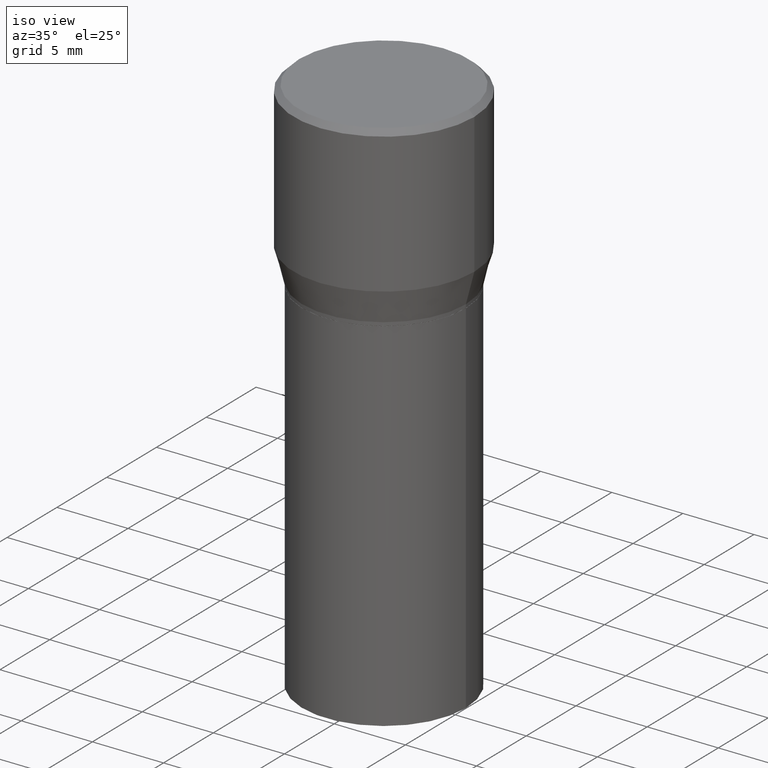
[diagram: clean part render]
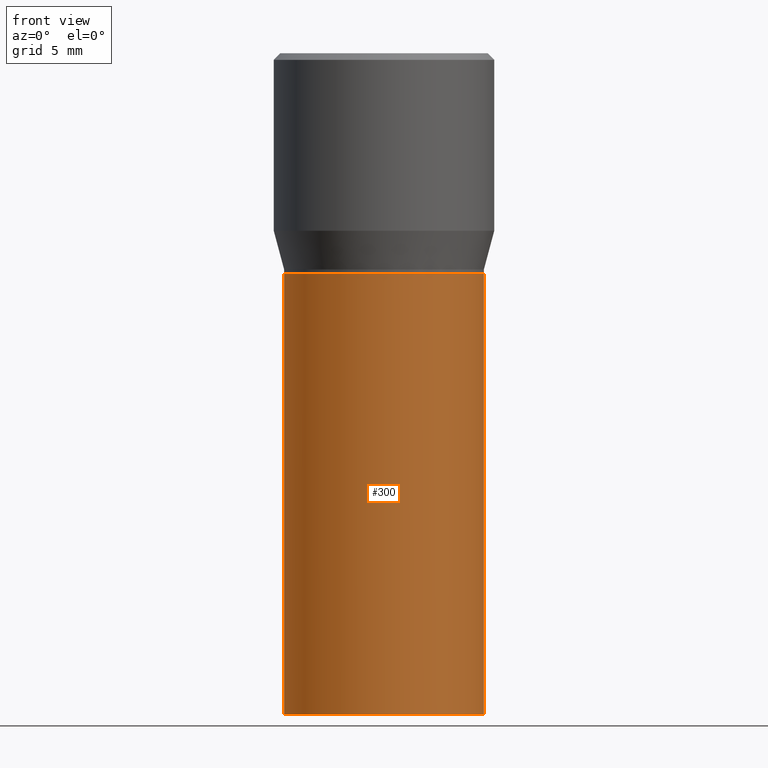
[diagram: tour spotlight — one face highlighted and labeled with its STEP entity id]
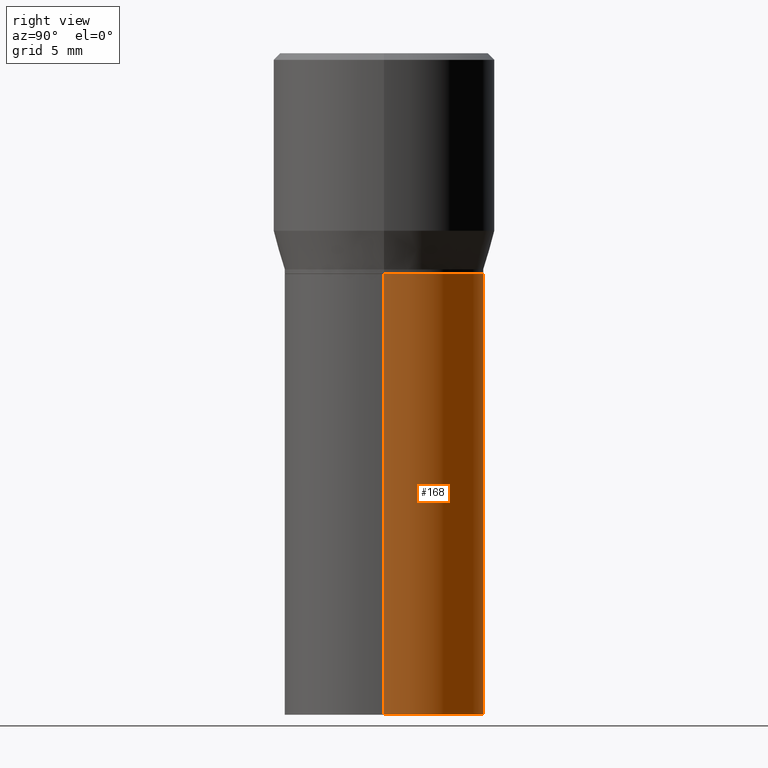
[diagram: tour spotlight — one face highlighted and labeled with its STEP entity id]
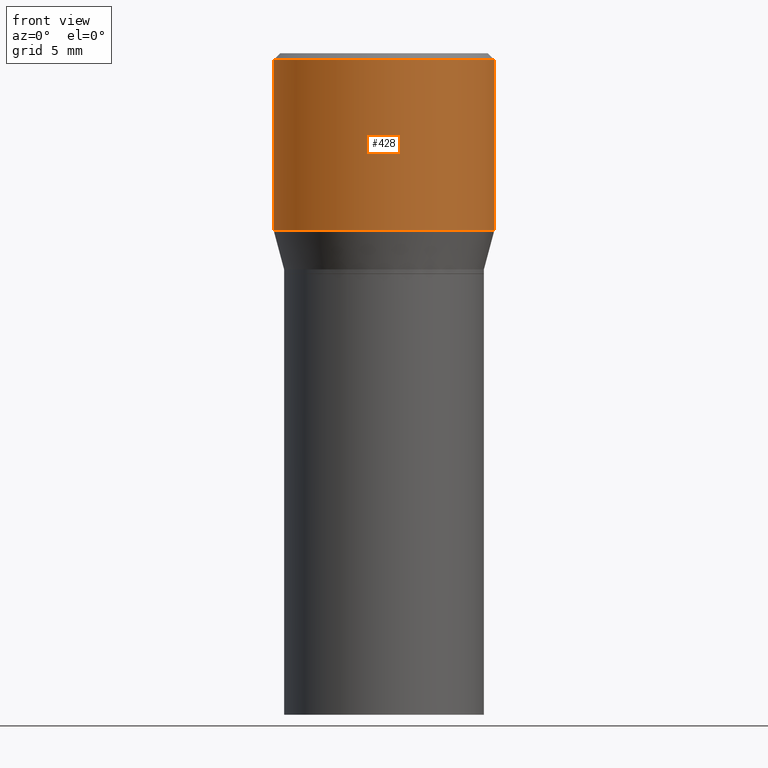
[diagram: tour spotlight — one face highlighted and labeled with its STEP entity id]
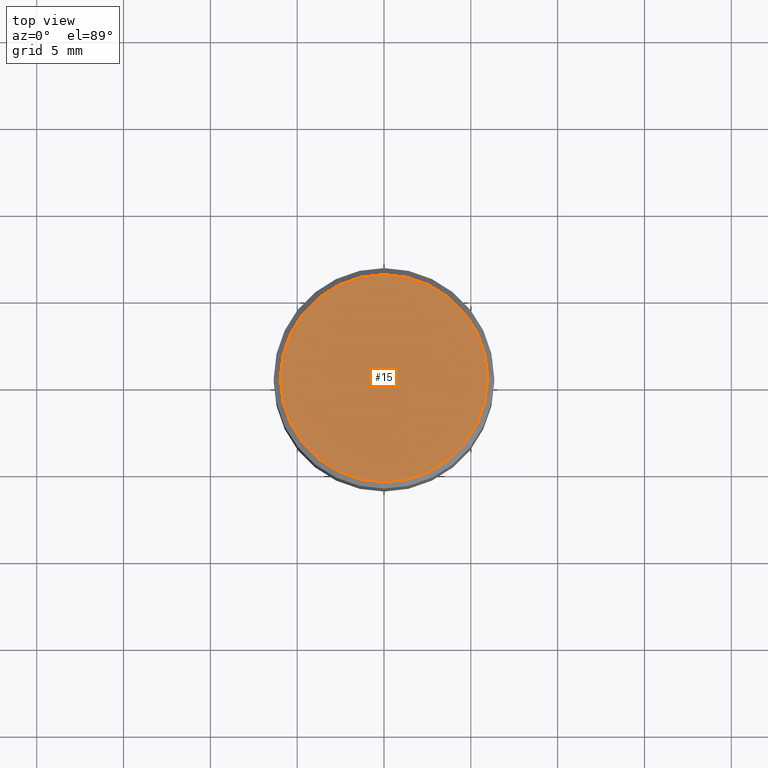
[diagram: tour spotlight — one face highlighted and labeled with its STEP entity id]
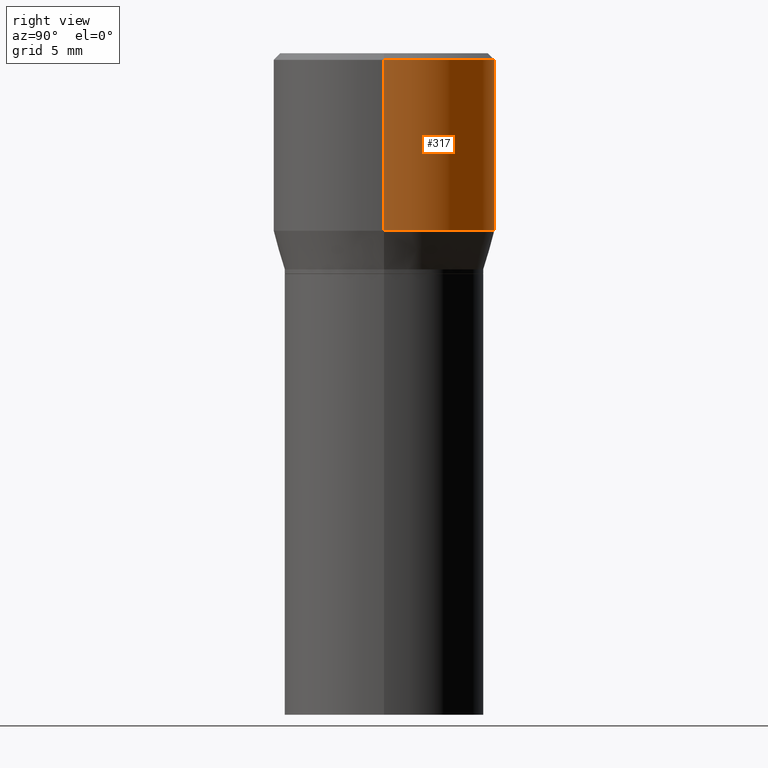
[diagram: tour spotlight — one face highlighted and labeled with its STEP entity id]
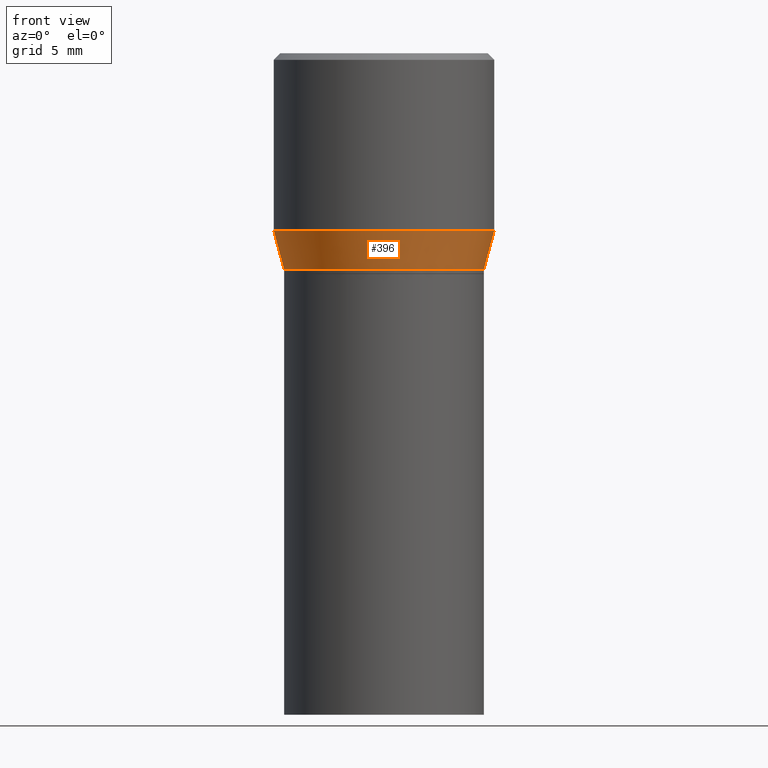
[diagram: tour spotlight — one face highlighted and labeled with its STEP entity id]
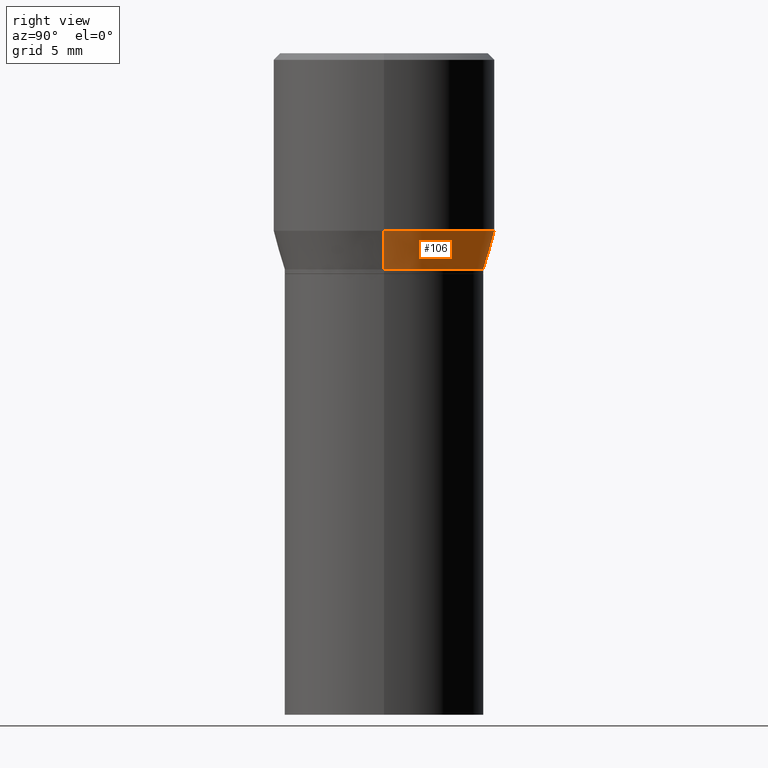
[diagram: tour spotlight — one face highlighted and labeled with its STEP entity id]
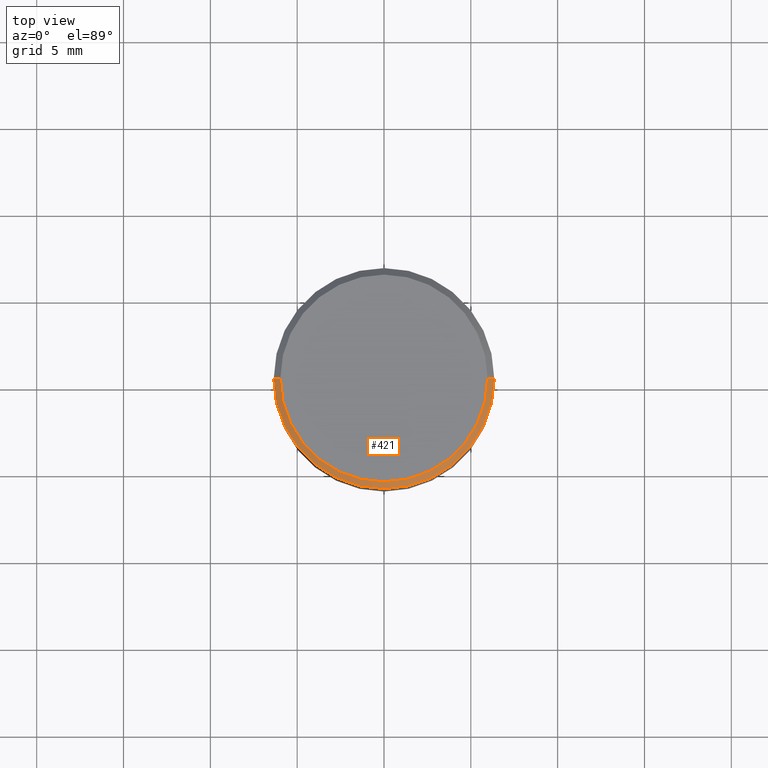
[diagram: tour spotlight — one face highlighted and labeled with its STEP entity id]
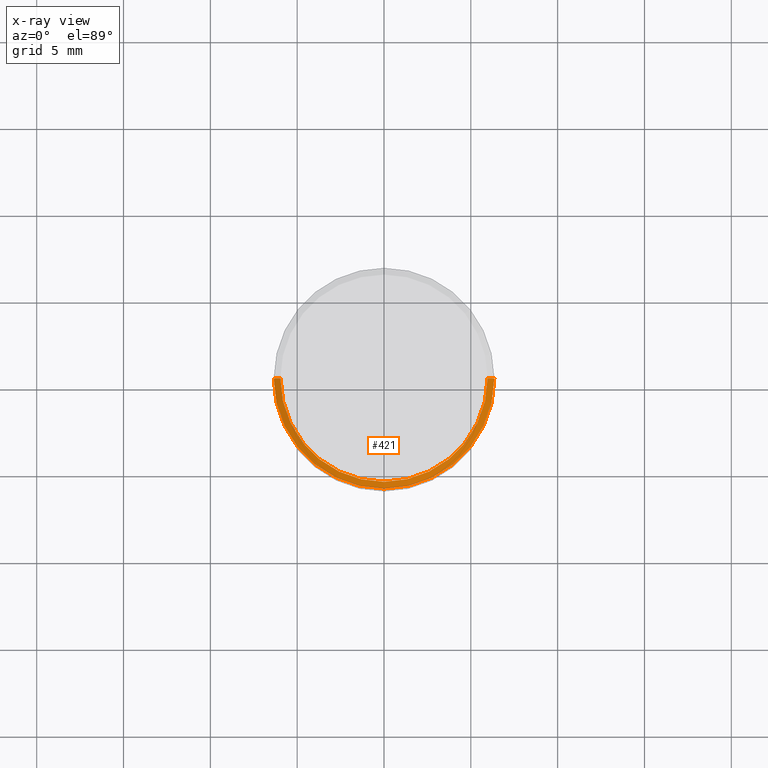
[diagram: x-ray of the same camera — body ghosted, this tour face saturated]
A machine part: a face-by-face anatomy tour. The part has 16 B-rep faces; the first image is the clean iso view, then the 8 largest visible faces are spotlighted one at a time (largest first), each with its STEP entity span.

Face 1 — front view, entity #300. In plain terms, the highlighted cylindrical surface (partial cylindrical patch) has radius 5.7544 mm, axis along (-0, 0, 1).
Definition (entity closure, byte-faithful):
#9 = LINE ( 'NONE', #401, #205 ) ;
#18 = LINE ( 'NONE', #126, #339 ) ;
#24 = ORIENTED_EDGE ( 'NONE', *, *, #342, .T. ) ;
#42 = CARTESIAN_POINT ( 'NONE',  ( 0.2265500000000000014, -6.819212202894542298E-15, -1.500000000000000222 ) ) ;
#52 = DIRECTION ( 'NONE',  ( 1.000000000000000000, -6.982962677686266711E-15, 4.876176775795935793E-29 ) ) ;
#55 = VERTEX_POINT ( 'NONE', #370 ) ;
#56 = AXIS2_PLACEMENT_3D ( 'NONE', #166, #274, #94 ) ;
#65 = ORIENTED_EDGE ( 'NONE', *, *, #78, .F. ) ;
#74 = VERTEX_POINT ( 'NONE', #196 ) ;
#78 = EDGE_CURVE ( 'NONE', #74, #379, #283, .T. ) ;
#83 = DIRECTION ( 'NONE',  ( -2.445468806185136877E-29, 3.491481338843145188E-15, 1.000000000000000000 ) ) ;
#91 = DIRECTION ( 'NONE',  ( 1.000000000000000000, -6.982962677686267499E-15, 0.000000000000000000 ) ) ;
#94 = DIRECTION ( 'NONE',  ( 1.000000000000000000, -6.982962677686266711E-15, 0.000000000000000000 ) ) ;
#113 = EDGE_CURVE ( 'NONE', #55, #291, #434, .T. ) ;
#121 = CARTESIAN_POINT ( 'NONE',  ( 3.668203209277704895E-29, -5.237222008264718177E-15, -1.500000000000000222 ) ) ;
#126 = CARTESIAN_POINT ( 'NONE',  ( -0.2265500000000000014, 1.609734567864506981E-15, -1.114384744697248863E-29 ) ) ;
#152 = FACE_OUTER_BOUND ( 'NONE', #307, .T. ) ;
#162 = CARTESIAN_POINT ( 'NONE',  ( 0.000000000000000000, 0.000000000000000000, 0.000000000000000000 ) ) ;
#166 = CARTESIAN_POINT ( 'NONE',  ( 1.222734403092568719E-29, -1.745740669421573186E-15, -0.5000000000000001110 ) ) ;
#180 = EDGE_CURVE ( 'NONE', #55, #74, #18, .T. ) ;
#196 = CARTESIAN_POINT ( 'NONE',  ( -0.2265500000000000014, -1.881746770978639193E-15, -0.5000000000000001110 ) ) ;
#205 = VECTOR ( 'NONE', #83, 39.37007874015748143 ) ;
#217 = ORIENTED_EDGE ( 'NONE', *, *, #113, .T. ) ;
#228 = AXIS2_PLACEMENT_3D ( 'NONE', #121, #308, #91 ) ;
#274 = DIRECTION ( 'NONE',  ( -2.445468806185136597E-29, 3.491481338843145583E-15, 1.000000000000000000 ) ) ;
#275 = CYLINDRICAL_SURFACE ( 'NONE', #369, 0.2265500000000000014 ) ;
#283 = CIRCLE ( 'NONE', #56, 0.2265500000000000014 ) ;
#291 = VERTEX_POINT ( 'NONE', #42 ) ;
#300 = ADVANCED_FACE ( 'NONE', ( #152 ), #275, .T. ) ;
#302 = DIRECTION ( 'NONE',  ( -2.445468806185136597E-29, 3.491481338843145583E-15, 1.000000000000000000 ) ) ;
#307 = EDGE_LOOP ( 'NONE', ( #405, #217, #24, #65 ) ) ;
#308 = DIRECTION ( 'NONE',  ( -2.445468806185136597E-29, 3.491481338843145583E-15, 1.000000000000000000 ) ) ;
#339 = VECTOR ( 'NONE', #415, 39.37007874015748143 ) ;
#342 = EDGE_CURVE ( 'NONE', #291, #379, #9, .T. ) ;
#369 = AXIS2_PLACEMENT_3D ( 'NONE', #162, #302, #52 ) ;
#370 = CARTESIAN_POINT ( 'NONE',  ( -0.2265500000000000014, -1.881746770978639193E-15, -1.500000000000000222 ) ) ;
#379 = VERTEX_POINT ( 'NONE', #426 ) ;
#401 = CARTESIAN_POINT ( 'NONE',  ( 0.2265500000000000014, -1.581990194629823726E-15, 1.104697848556569281E-29 ) ) ;
#405 = ORIENTED_EDGE ( 'NONE', *, *, #180, .F. ) ;
#415 = DIRECTION ( 'NONE',  ( -2.445468806185136877E-29, 3.491481338843145188E-15, 1.000000000000000000 ) ) ;
#426 = CARTESIAN_POINT ( 'NONE',  ( 0.2265500000000000014, -3.327730864051397109E-15, -0.5000000000000001110 ) ) ;
#434 = CIRCLE ( 'NONE', #228, 0.2265500000000000014 ) ;

Face 2 — right view, entity #168. In plain terms, the highlighted cylindrical surface (partial cylindrical patch) has radius 5.7544 mm, axis along (-0, 0, 1).
Definition (entity closure, byte-faithful):
#9 = LINE ( 'NONE', #401, #205 ) ;
#16 = EDGE_CURVE ( 'NONE', #291, #55, #111, .T. ) ;
#18 = LINE ( 'NONE', #126, #339 ) ;
#19 = ORIENTED_EDGE ( 'NONE', *, *, #180, .T. ) ;
#20 = FACE_OUTER_BOUND ( 'NONE', #355, .T. ) ;
#30 = DIRECTION ( 'NONE',  ( 1.000000000000000000, -6.982962677686267499E-15, 0.000000000000000000 ) ) ;
#42 = CARTESIAN_POINT ( 'NONE',  ( 0.2265500000000000014, -6.819212202894542298E-15, -1.500000000000000222 ) ) ;
#55 = VERTEX_POINT ( 'NONE', #370 ) ;
#74 = VERTEX_POINT ( 'NONE', #196 ) ;
#75 = ORIENTED_EDGE ( 'NONE', *, *, #342, .F. ) ;
#80 = CARTESIAN_POINT ( 'NONE',  ( 1.222734403092568719E-29, -1.745740669421573186E-15, -0.5000000000000001110 ) ) ;
#83 = DIRECTION ( 'NONE',  ( -2.445468806185136877E-29, 3.491481338843145188E-15, 1.000000000000000000 ) ) ;
#96 = AXIS2_PLACEMENT_3D ( 'NONE', #80, #183, #213 ) ;
#101 = CARTESIAN_POINT ( 'NONE',  ( 0.000000000000000000, 0.000000000000000000, 0.000000000000000000 ) ) ;
#104 = CARTESIAN_POINT ( 'NONE',  ( 3.668203209277704895E-29, -5.237222008264718177E-15, -1.500000000000000222 ) ) ;
#111 = CIRCLE ( 'NONE', #367, 0.2265500000000000014 ) ;
#126 = CARTESIAN_POINT ( 'NONE',  ( -0.2265500000000000014, 1.609734567864506981E-15, -1.114384744697248863E-29 ) ) ;
#134 = AXIS2_PLACEMENT_3D ( 'NONE', #101, #381, #248 ) ;
#168 = ADVANCED_FACE ( 'NONE', ( #20 ), #345, .T. ) ;
#180 = EDGE_CURVE ( 'NONE', #55, #74, #18, .T. ) ;
#183 = DIRECTION ( 'NONE',  ( -2.445468806185136597E-29, 3.491481338843145583E-15, 1.000000000000000000 ) ) ;
#196 = CARTESIAN_POINT ( 'NONE',  ( -0.2265500000000000014, -1.881746770978639193E-15, -0.5000000000000001110 ) ) ;
#205 = VECTOR ( 'NONE', #83, 39.37007874015748143 ) ;
#213 = DIRECTION ( 'NONE',  ( 1.000000000000000000, -6.982962677686266711E-15, 0.000000000000000000 ) ) ;
#248 = DIRECTION ( 'NONE',  ( 1.000000000000000000, -6.982962677686266711E-15, 4.876176775795935793E-29 ) ) ;
#249 = CIRCLE ( 'NONE', #96, 0.2265500000000000014 ) ;
#251 = DIRECTION ( 'NONE',  ( -2.445468806185136597E-29, 3.491481338843145583E-15, 1.000000000000000000 ) ) ;
#272 = ORIENTED_EDGE ( 'NONE', *, *, #16, .T. ) ;
#291 = VERTEX_POINT ( 'NONE', #42 ) ;
#332 = EDGE_CURVE ( 'NONE', #379, #74, #249, .T. ) ;
#339 = VECTOR ( 'NONE', #415, 39.37007874015748143 ) ;
#342 = EDGE_CURVE ( 'NONE', #291, #379, #9, .T. ) ;
#345 = CYLINDRICAL_SURFACE ( 'NONE', #134, 0.2265500000000000014 ) ;
#355 = EDGE_LOOP ( 'NONE', ( #272, #19, #454, #75 ) ) ;
#367 = AXIS2_PLACEMENT_3D ( 'NONE', #104, #251, #30 ) ;
#370 = CARTESIAN_POINT ( 'NONE',  ( -0.2265500000000000014, -1.881746770978639193E-15, -1.500000000000000222 ) ) ;
#379 = VERTEX_POINT ( 'NONE', #426 ) ;
#381 = DIRECTION ( 'NONE',  ( -2.445468806185136597E-29, 3.491481338843145583E-15, 1.000000000000000000 ) ) ;
#401 = CARTESIAN_POINT ( 'NONE',  ( 0.2265500000000000014, -1.581990194629823726E-15, 1.104697848556569281E-29 ) ) ;
#415 = DIRECTION ( 'NONE',  ( -2.445468806185136877E-29, 3.491481338843145188E-15, 1.000000000000000000 ) ) ;
#426 = CARTESIAN_POINT ( 'NONE',  ( 0.2265500000000000014, -3.327730864051397109E-15, -0.5000000000000001110 ) ) ;
#454 = ORIENTED_EDGE ( 'NONE', *, *, #332, .F. ) ;

Face 3 — front view, entity #428. In plain terms, the highlighted cylindrical surface (partial cylindrical patch) has radius 6.35 mm, axis along (-0, 0, 1).
Definition (entity closure, byte-faithful):
#17 = AXIS2_PLACEMENT_3D ( 'NONE', #455, #132, #388 ) ;
#28 = DIRECTION ( 'NONE',  ( 1.000000000000000000, -6.982962677686266711E-15, 4.876176775795935793E-29 ) ) ;
#40 = CIRCLE ( 'NONE', #17, 0.2500000000000000000 ) ;
#68 = EDGE_CURVE ( 'NONE', #159, #464, #160, .T. ) ;
#79 = ORIENTED_EDGE ( 'NONE', *, *, #420, .T. ) ;
#109 = VERTEX_POINT ( 'NONE', #442 ) ;
#123 = CIRCLE ( 'NONE', #214, 0.2500000000000000000 ) ;
#132 = DIRECTION ( 'NONE',  ( -2.445468806185136597E-29, 3.491481338843145583E-15, 1.000000000000000000 ) ) ;
#151 = VECTOR ( 'NONE', #462, 39.37007874015748143 ) ;
#159 = VERTEX_POINT ( 'NONE', #200 ) ;
#160 = LINE ( 'NONE', #334, #443 ) ;
#174 = CYLINDRICAL_SURFACE ( 'NONE', #263, 0.2500000000000000000 ) ;
#200 = CARTESIAN_POINT ( 'NONE',  ( 0.2500000000000000000, -3.151003979611552069E-15, -0.4024834085625100810 ) ) ;
#214 = AXIS2_PLACEMENT_3D ( 'NONE', #315, #216, #427 ) ;
#216 = DIRECTION ( 'NONE',  ( -2.445468806185136597E-29, 3.491481338843145583E-15, 1.000000000000000000 ) ) ;
#227 = VERTEX_POINT ( 'NONE', #293 ) ;
#239 = ORIENTED_EDGE ( 'NONE', *, *, #68, .T. ) ;
#252 = FACE_OUTER_BOUND ( 'NONE', #259, .T. ) ;
#255 = ORIENTED_EDGE ( 'NONE', *, *, #395, .F. ) ;
#259 = EDGE_LOOP ( 'NONE', ( #255, #79, #239, #371 ) ) ;
#263 = AXIS2_PLACEMENT_3D ( 'NONE', #281, #351, #28 ) ;
#279 = DIRECTION ( 'NONE',  ( -2.445468806185136877E-29, 3.491481338843145188E-15, 1.000000000000000000 ) ) ;
#281 = CARTESIAN_POINT ( 'NONE',  ( 0.000000000000000000, 0.000000000000000000, 0.000000000000000000 ) ) ;
#293 = CARTESIAN_POINT ( 'NONE',  ( -0.2500000000000000000, 1.047539074263934229E-15, -0.01499999999999999944 ) ) ;
#315 = CARTESIAN_POINT ( 'NONE',  ( 3.668203209277705088E-31, -5.237222008264718399E-17, -0.01499999999999999944 ) ) ;
#334 = CARTESIAN_POINT ( 'NONE',  ( 0.2500000000000000000, -1.745740669421566678E-15, 1.219044193948983948E-29 ) ) ;
#351 = DIRECTION ( 'NONE',  ( -2.445468806185136597E-29, 3.491481338843145583E-15, 1.000000000000000000 ) ) ;
#354 = LINE ( 'NONE', #458, #151 ) ;
#358 = CARTESIAN_POINT ( 'NONE',  ( 0.2500000000000000000, -1.798112889504214151E-15, -0.01499999999999999944 ) ) ;
#371 = ORIENTED_EDGE ( 'NONE', *, *, #453, .F. ) ;
#388 = DIRECTION ( 'NONE',  ( 1.000000000000000000, -6.982962677686265922E-15, 0.000000000000000000 ) ) ;
#395 = EDGE_CURVE ( 'NONE', #109, #227, #354, .T. ) ;
#420 = EDGE_CURVE ( 'NONE', #109, #159, #40, .T. ) ;
#427 = DIRECTION ( 'NONE',  ( 1.000000000000000000, -6.982962677686266711E-15, 0.000000000000000000 ) ) ;
#428 = ADVANCED_FACE ( 'NONE', ( #252 ), #174, .T. ) ;
#442 = CARTESIAN_POINT ( 'NONE',  ( -0.2500000000000000000, 3.710935292102651716E-16, -0.4024834085625100810 ) ) ;
#443 = VECTOR ( 'NONE', #279, 39.37007874015748143 ) ;
#453 = EDGE_CURVE ( 'NONE', #227, #464, #123, .T. ) ;
#455 = CARTESIAN_POINT ( 'NONE',  ( 9.842606206466859638E-30, -1.405263310189985589E-15, -0.4024834085625100810 ) ) ;
#458 = CARTESIAN_POINT ( 'NONE',  ( -0.2500000000000000000, 1.776356839400250465E-15, -1.229733772563726445E-29 ) ) ;
#462 = DIRECTION ( 'NONE',  ( -2.445468806185136877E-29, 3.491481338843145188E-15, 1.000000000000000000 ) ) ;
#464 = VERTEX_POINT ( 'NONE', #358 ) ;

Face 4 — top view, entity #15. In plain terms, the highlighted planar face has unit normal (0, -0, -1).
Definition (entity closure, byte-faithful):
#15 = ADVANCED_FACE ( 'NONE', ( #140 ), #457, .F. ) ;
#37 = CARTESIAN_POINT ( 'NONE',  ( -3.836052468622837406E-45, 5.476866265946494270E-31, 1.568636843340877764E-16 ) ) ;
#71 = DIRECTION ( 'NONE',  ( 1.000000000000000000, -6.982962677686267499E-15, 4.878549297894958458E-29 ) ) ;
#84 = CARTESIAN_POINT ( 'NONE',  ( -0.2349999999999999867, 1.667182339297596256E-15, 1.568636843340762393E-16 ) ) ;
#137 = DIRECTION ( 'NONE',  ( -2.445468806185136597E-29, 3.491481338843145583E-15, 1.000000000000000000 ) ) ;
#140 = FACE_OUTER_BOUND ( 'NONE', #181, .T. ) ;
#163 = AXIS2_PLACEMENT_3D ( 'NONE', #270, #410, #244 ) ;
#181 = EDGE_LOOP ( 'NONE', ( #340, #324 ) ) ;
#201 = EDGE_CURVE ( 'NONE', #383, #269, #461, .T. ) ;
#244 = DIRECTION ( 'NONE',  ( 1.000000000000000000, -6.982962677686267499E-15, 4.878549297894958458E-29 ) ) ;
#257 = AXIS2_PLACEMENT_3D ( 'NONE', #37, #137, #71 ) ;
#269 = VERTEX_POINT ( 'NONE', #84 ) ;
#270 = CARTESIAN_POINT ( 'NONE',  ( -3.836052468622837406E-45, 5.476866265946494270E-31, 1.568636843340877764E-16 ) ) ;
#282 = DIRECTION ( 'NONE',  ( 2.438088387897960049E-29, -3.491481338843145188E-15, -1.000000000000000000 ) ) ;
#284 = CARTESIAN_POINT ( 'NONE',  ( 0.2349999999999999867, -1.689856874500919833E-15, 1.568636843340994368E-16 ) ) ;
#318 = CARTESIAN_POINT ( 'NONE',  ( 1.640996229256272519E-15, 0.2349999999999999867, -7.420662724610952803E-16 ) ) ;
#324 = ORIENTED_EDGE ( 'NONE', *, *, #201, .T. ) ;
#328 = EDGE_CURVE ( 'NONE', #269, #383, #406, .T. ) ;
#340 = ORIENTED_EDGE ( 'NONE', *, *, #328, .T. ) ;
#383 = VERTEX_POINT ( 'NONE', #284 ) ;
#406 = CIRCLE ( 'NONE', #257, 0.2349999999999999867 ) ;
#410 = DIRECTION ( 'NONE',  ( -2.445468806185136597E-29, 3.491481338843145583E-15, 1.000000000000000000 ) ) ;
#424 = DIRECTION ( 'NONE',  ( -1.000000000000000000, 6.982962677686265922E-15, -4.876176775795935793E-29 ) ) ;
#450 = AXIS2_PLACEMENT_3D ( 'NONE', #318, #282, #424 ) ;
#457 = PLANE ( 'NONE',  #450 ) ;
#461 = CIRCLE ( 'NONE', #163, 0.2349999999999999867 ) ;

Face 5 — right view, entity #317. In plain terms, the highlighted cylindrical surface (partial cylindrical patch) has radius 6.35 mm, axis along (-0, 0, 1).
Definition (entity closure, byte-faithful):
#1 = ORIENTED_EDGE ( 'NONE', *, *, #395, .T. ) ;
#5 = CARTESIAN_POINT ( 'NONE',  ( 9.842606206466859638E-30, -1.405263310189985589E-15, -0.4024834085625100810 ) ) ;
#8 = DIRECTION ( 'NONE',  ( 1.000000000000000000, -6.982962677686265922E-15, 0.000000000000000000 ) ) ;
#39 = DIRECTION ( 'NONE',  ( 1.000000000000000000, -6.982962677686266711E-15, 4.876176775795935793E-29 ) ) ;
#68 = EDGE_CURVE ( 'NONE', #159, #464, #160, .T. ) ;
#109 = VERTEX_POINT ( 'NONE', #442 ) ;
#114 = AXIS2_PLACEMENT_3D ( 'NONE', #197, #338, #39 ) ;
#151 = VECTOR ( 'NONE', #462, 39.37007874015748143 ) ;
#159 = VERTEX_POINT ( 'NONE', #200 ) ;
#160 = LINE ( 'NONE', #334, #443 ) ;
#194 = CARTESIAN_POINT ( 'NONE',  ( 3.668203209277705088E-31, -5.237222008264718399E-17, -0.01499999999999999944 ) ) ;
#197 = CARTESIAN_POINT ( 'NONE',  ( 0.000000000000000000, 0.000000000000000000, 0.000000000000000000 ) ) ;
#200 = CARTESIAN_POINT ( 'NONE',  ( 0.2500000000000000000, -3.151003979611552069E-15, -0.4024834085625100810 ) ) ;
#215 = ORIENTED_EDGE ( 'NONE', *, *, #220, .T. ) ;
#220 = EDGE_CURVE ( 'NONE', #159, #109, #429, .T. ) ;
#222 = CIRCLE ( 'NONE', #301, 0.2500000000000000000 ) ;
#227 = VERTEX_POINT ( 'NONE', #293 ) ;
#235 = FACE_OUTER_BOUND ( 'NONE', #237, .T. ) ;
#237 = EDGE_LOOP ( 'NONE', ( #215, #1, #417, #266 ) ) ;
#247 = EDGE_CURVE ( 'NONE', #464, #227, #222, .T. ) ;
#266 = ORIENTED_EDGE ( 'NONE', *, *, #68, .F. ) ;
#279 = DIRECTION ( 'NONE',  ( -2.445468806185136877E-29, 3.491481338843145188E-15, 1.000000000000000000 ) ) ;
#293 = CARTESIAN_POINT ( 'NONE',  ( -0.2500000000000000000, 1.047539074263934229E-15, -0.01499999999999999944 ) ) ;
#301 = AXIS2_PLACEMENT_3D ( 'NONE', #194, #433, #403 ) ;
#317 = ADVANCED_FACE ( 'NONE', ( #235 ), #413, .T. ) ;
#331 = DIRECTION ( 'NONE',  ( -2.445468806185136597E-29, 3.491481338843145583E-15, 1.000000000000000000 ) ) ;
#334 = CARTESIAN_POINT ( 'NONE',  ( 0.2500000000000000000, -1.745740669421566678E-15, 1.219044193948983948E-29 ) ) ;
#338 = DIRECTION ( 'NONE',  ( -2.445468806185136597E-29, 3.491481338843145583E-15, 1.000000000000000000 ) ) ;
#354 = LINE ( 'NONE', #458, #151 ) ;
#358 = CARTESIAN_POINT ( 'NONE',  ( 0.2500000000000000000, -1.798112889504214151E-15, -0.01499999999999999944 ) ) ;
#395 = EDGE_CURVE ( 'NONE', #109, #227, #354, .T. ) ;
#403 = DIRECTION ( 'NONE',  ( 1.000000000000000000, -6.982962677686266711E-15, 0.000000000000000000 ) ) ;
#413 = CYLINDRICAL_SURFACE ( 'NONE', #114, 0.2500000000000000000 ) ;
#417 = ORIENTED_EDGE ( 'NONE', *, *, #247, .F. ) ;
#429 = CIRCLE ( 'NONE', #444, 0.2500000000000000000 ) ;
#433 = DIRECTION ( 'NONE',  ( -2.445468806185136597E-29, 3.491481338843145583E-15, 1.000000000000000000 ) ) ;
#442 = CARTESIAN_POINT ( 'NONE',  ( -0.2500000000000000000, 3.710935292102651716E-16, -0.4024834085625100810 ) ) ;
#443 = VECTOR ( 'NONE', #279, 39.37007874015748143 ) ;
#444 = AXIS2_PLACEMENT_3D ( 'NONE', #5, #331, #8 ) ;
#458 = CARTESIAN_POINT ( 'NONE',  ( -0.2500000000000000000, 1.776356839400250465E-15, -1.229733772563726445E-29 ) ) ;
#462 = DIRECTION ( 'NONE',  ( -2.445468806185136877E-29, 3.491481338843145188E-15, 1.000000000000000000 ) ) ;
#464 = VERTEX_POINT ( 'NONE', #358 ) ;

Face 6 — front view, entity #396. In plain terms, the highlighted conical surface has half-angle 15 deg.
Definition (entity closure, byte-faithful):
#17 = AXIS2_PLACEMENT_3D ( 'NONE', #455, #132, #388 ) ;
#38 = EDGE_CURVE ( 'NONE', #377, #159, #459, .T. ) ;
#40 = CIRCLE ( 'NONE', #17, 0.2500000000000000000 ) ;
#46 = CONICAL_SURFACE ( 'NONE', #309, 0.2265499999999999736, 0.2617993877991501295 ) ;
#58 = DIRECTION ( 'NONE',  ( -0.2588190451025214611, 5.211531920934551042E-15, 0.9659258262890682012 ) ) ;
#59 = VERTEX_POINT ( 'NONE', #449 ) ;
#70 = DIRECTION ( 'NONE',  ( 0.2588190451025214611, 1.565188264969621573E-15, 0.9659258262890682012 ) ) ;
#73 = CIRCLE ( 'NONE', #88, 0.2265499999999999736 ) ;
#77 = CARTESIAN_POINT ( 'NONE',  ( 1.198279715030717173E-29, -1.710825856033141537E-15, -0.4900000000000001021 ) ) ;
#81 = ORIENTED_EDGE ( 'NONE', *, *, #169, .F. ) ;
#88 = AXIS2_PLACEMENT_3D ( 'NONE', #161, #240, #375 ) ;
#97 = EDGE_LOOP ( 'NONE', ( #81, #233, #199, #120 ) ) ;
#107 = DIRECTION ( 'NONE',  ( 1.000000000000000000, -6.982962677686265922E-15, 0.000000000000000000 ) ) ;
#109 = VERTEX_POINT ( 'NONE', #442 ) ;
#120 = ORIENTED_EDGE ( 'NONE', *, *, #420, .F. ) ;
#132 = DIRECTION ( 'NONE',  ( -2.445468806185136597E-29, 3.491481338843145583E-15, 1.000000000000000000 ) ) ;
#135 = CARTESIAN_POINT ( 'NONE',  ( 0.2265499999999999736, -3.292816050662964671E-15, -0.4900000000000001021 ) ) ;
#144 = FACE_OUTER_BOUND ( 'NONE', #97, .T. ) ;
#156 = EDGE_CURVE ( 'NONE', #59, #377, #73, .T. ) ;
#158 = LINE ( 'NONE', #439, #400 ) ;
#159 = VERTEX_POINT ( 'NONE', #200 ) ;
#161 = CARTESIAN_POINT ( 'NONE',  ( 1.198279715030717173E-29, -1.710825856033141537E-15, -0.4900000000000001021 ) ) ;
#169 = EDGE_CURVE ( 'NONE', #59, #109, #158, .T. ) ;
#199 = ORIENTED_EDGE ( 'NONE', *, *, #38, .T. ) ;
#200 = CARTESIAN_POINT ( 'NONE',  ( 0.2500000000000000000, -3.151003979611552069E-15, -0.4024834085625100810 ) ) ;
#233 = ORIENTED_EDGE ( 'NONE', *, *, #156, .T. ) ;
#240 = DIRECTION ( 'NONE',  ( -2.445468806185136597E-29, 3.491481338843145583E-15, 1.000000000000000000 ) ) ;
#309 = AXIS2_PLACEMENT_3D ( 'NONE', #77, #385, #107 ) ;
#343 = CARTESIAN_POINT ( 'NONE',  ( 0.2265499999999999736, -3.292816050662964671E-15, -0.4900000000000001021 ) ) ;
#375 = DIRECTION ( 'NONE',  ( 1.000000000000000000, -6.982962677686265922E-15, 0.000000000000000000 ) ) ;
#377 = VERTEX_POINT ( 'NONE', #343 ) ;
#385 = DIRECTION ( 'NONE',  ( -2.445468806185136597E-29, 3.491481338843145583E-15, 1.000000000000000000 ) ) ;
#388 = DIRECTION ( 'NONE',  ( 1.000000000000000000, -6.982962677686265922E-15, 0.000000000000000000 ) ) ;
#396 = ADVANCED_FACE ( 'NONE', ( #144 ), #46, .T. ) ;
#397 = VECTOR ( 'NONE', #70, 39.37007874015747433 ) ;
#400 = VECTOR ( 'NONE', #58, 39.37007874015747433 ) ;
#420 = EDGE_CURVE ( 'NONE', #109, #159, #40, .T. ) ;
#439 = CARTESIAN_POINT ( 'NONE',  ( -0.2265499999999999736, -1.010912881686348269E-16, -0.4900000000000001021 ) ) ;
#442 = CARTESIAN_POINT ( 'NONE',  ( -0.2500000000000000000, 3.710935292102651716E-16, -0.4024834085625100810 ) ) ;
#449 = CARTESIAN_POINT ( 'NONE',  ( -0.2265499999999999736, 1.350011205208151600E-16, -0.4900000000000001021 ) ) ;
#455 = CARTESIAN_POINT ( 'NONE',  ( 9.842606206466859638E-30, -1.405263310189985589E-15, -0.4024834085625100810 ) ) ;
#459 = LINE ( 'NONE', #135, #397 ) ;

Face 7 — right view, entity #106. In plain terms, the highlighted conical surface has half-angle 15 deg.
Definition (entity closure, byte-faithful):
#5 = CARTESIAN_POINT ( 'NONE',  ( 9.842606206466859638E-30, -1.405263310189985589E-15, -0.4024834085625100810 ) ) ;
#8 = DIRECTION ( 'NONE',  ( 1.000000000000000000, -6.982962677686265922E-15, 0.000000000000000000 ) ) ;
#23 = DIRECTION ( 'NONE',  ( 1.000000000000000000, -6.982962677686265922E-15, 0.000000000000000000 ) ) ;
#38 = EDGE_CURVE ( 'NONE', #377, #159, #459, .T. ) ;
#58 = DIRECTION ( 'NONE',  ( -0.2588190451025214611, 5.211531920934551042E-15, 0.9659258262890682012 ) ) ;
#59 = VERTEX_POINT ( 'NONE', #449 ) ;
#63 = FACE_OUTER_BOUND ( 'NONE', #108, .T. ) ;
#70 = DIRECTION ( 'NONE',  ( 0.2588190451025214611, 1.565188264969621573E-15, 0.9659258262890682012 ) ) ;
#82 = CIRCLE ( 'NONE', #398, 0.2265499999999999736 ) ;
#106 = ADVANCED_FACE ( 'NONE', ( #63 ), #277, .T. ) ;
#108 = EDGE_LOOP ( 'NONE', ( #452, #147, #210, #110 ) ) ;
#109 = VERTEX_POINT ( 'NONE', #442 ) ;
#110 = ORIENTED_EDGE ( 'NONE', *, *, #38, .F. ) ;
#115 = CARTESIAN_POINT ( 'NONE',  ( 1.198279715030717173E-29, -1.710825856033141537E-15, -0.4900000000000001021 ) ) ;
#135 = CARTESIAN_POINT ( 'NONE',  ( 0.2265499999999999736, -3.292816050662964671E-15, -0.4900000000000001021 ) ) ;
#147 = ORIENTED_EDGE ( 'NONE', *, *, #169, .T. ) ;
#155 = DIRECTION ( 'NONE',  ( -2.445468806185136597E-29, 3.491481338843145583E-15, 1.000000000000000000 ) ) ;
#158 = LINE ( 'NONE', #439, #400 ) ;
#159 = VERTEX_POINT ( 'NONE', #200 ) ;
#169 = EDGE_CURVE ( 'NONE', #59, #109, #158, .T. ) ;
#200 = CARTESIAN_POINT ( 'NONE',  ( 0.2500000000000000000, -3.151003979611552069E-15, -0.4024834085625100810 ) ) ;
#210 = ORIENTED_EDGE ( 'NONE', *, *, #220, .F. ) ;
#220 = EDGE_CURVE ( 'NONE', #159, #109, #429, .T. ) ;
#229 = CARTESIAN_POINT ( 'NONE',  ( 1.198279715030717173E-29, -1.710825856033141537E-15, -0.4900000000000001021 ) ) ;
#238 = EDGE_CURVE ( 'NONE', #377, #59, #82, .T. ) ;
#277 = CONICAL_SURFACE ( 'NONE', #289, 0.2265499999999999736, 0.2617993877991501295 ) ;
#289 = AXIS2_PLACEMENT_3D ( 'NONE', #229, #418, #23 ) ;
#298 = DIRECTION ( 'NONE',  ( 1.000000000000000000, -6.982962677686265922E-15, 0.000000000000000000 ) ) ;
#331 = DIRECTION ( 'NONE',  ( -2.445468806185136597E-29, 3.491481338843145583E-15, 1.000000000000000000 ) ) ;
#343 = CARTESIAN_POINT ( 'NONE',  ( 0.2265499999999999736, -3.292816050662964671E-15, -0.4900000000000001021 ) ) ;
#377 = VERTEX_POINT ( 'NONE', #343 ) ;
#397 = VECTOR ( 'NONE', #70, 39.37007874015747433 ) ;
#398 = AXIS2_PLACEMENT_3D ( 'NONE', #115, #155, #298 ) ;
#400 = VECTOR ( 'NONE', #58, 39.37007874015747433 ) ;
#418 = DIRECTION ( 'NONE',  ( -2.445468806185136597E-29, 3.491481338843145583E-15, 1.000000000000000000 ) ) ;
#429 = CIRCLE ( 'NONE', #444, 0.2500000000000000000 ) ;
#439 = CARTESIAN_POINT ( 'NONE',  ( -0.2265499999999999736, -1.010912881686348269E-16, -0.4900000000000001021 ) ) ;
#442 = CARTESIAN_POINT ( 'NONE',  ( -0.2500000000000000000, 3.710935292102651716E-16, -0.4024834085625100810 ) ) ;
#444 = AXIS2_PLACEMENT_3D ( 'NONE', #5, #331, #8 ) ;
#449 = CARTESIAN_POINT ( 'NONE',  ( -0.2265499999999999736, 1.350011205208151600E-16, -0.4900000000000001021 ) ) ;
#452 = ORIENTED_EDGE ( 'NONE', *, *, #238, .T. ) ;
#459 = LINE ( 'NONE', #135, #397 ) ;

Face 8 — top view, entity #421. An x-ray twin of the same camera follows (body ghosted, this face saturated) — the face is partly hidden behind the body. In plain terms, the highlighted conical surface has half-angle 45 deg.
Definition (entity closure, byte-faithful):
#10 = ORIENTED_EDGE ( 'NONE', *, *, #313, .F. ) ;
#14 = DIRECTION ( 'NONE',  ( 0.7071067811865441310, -7.319954787623245001E-15, -0.7071067811865509034 ) ) ;
#37 = CARTESIAN_POINT ( 'NONE',  ( -3.836052468622837406E-45, 5.476866265946494270E-31, 1.568636843340877764E-16 ) ) ;
#54 = EDGE_LOOP ( 'NONE', ( #10, #411, #311, #408 ) ) ;
#67 = CARTESIAN_POINT ( 'NONE',  ( 3.668203209277705088E-31, -5.237222008264718399E-17, -0.01499999999999999944 ) ) ;
#71 = DIRECTION ( 'NONE',  ( 1.000000000000000000, -6.982962677686267499E-15, 4.878549297894958458E-29 ) ) ;
#84 = CARTESIAN_POINT ( 'NONE',  ( -0.2349999999999999867, 1.667182339297596256E-15, 1.568636843340762393E-16 ) ) ;
#123 = CIRCLE ( 'NONE', #214, 0.2500000000000000000 ) ;
#137 = DIRECTION ( 'NONE',  ( -2.445468806185136597E-29, 3.491481338843145583E-15, 1.000000000000000000 ) ) ;
#138 = FACE_OUTER_BOUND ( 'NONE', #54, .T. ) ;
#165 = LINE ( 'NONE', #423, #325 ) ;
#173 = DIRECTION ( 'NONE',  ( 2.445468806185136597E-29, -3.491481338843145583E-15, -1.000000000000000000 ) ) ;
#184 = AXIS2_PLACEMENT_3D ( 'NONE', #67, #173, #393 ) ;
#214 = AXIS2_PLACEMENT_3D ( 'NONE', #315, #216, #427 ) ;
#216 = DIRECTION ( 'NONE',  ( -2.445468806185136597E-29, 3.491481338843145583E-15, 1.000000000000000000 ) ) ;
#227 = VERTEX_POINT ( 'NONE', #293 ) ;
#257 = AXIS2_PLACEMENT_3D ( 'NONE', #37, #137, #71 ) ;
#264 = DIRECTION ( 'NONE',  ( -0.7071067811865441310, 2.468850131082221167E-15, -0.7071067811865509034 ) ) ;
#269 = VERTEX_POINT ( 'NONE', #84 ) ;
#284 = CARTESIAN_POINT ( 'NONE',  ( 0.2349999999999999867, -1.689856874500919833E-15, 1.568636843340994368E-16 ) ) ;
#293 = CARTESIAN_POINT ( 'NONE',  ( -0.2500000000000000000, 1.047539074263934229E-15, -0.01499999999999999944 ) ) ;
#311 = ORIENTED_EDGE ( 'NONE', *, *, #359, .T. ) ;
#313 = EDGE_CURVE ( 'NONE', #383, #464, #373, .T. ) ;
#315 = CARTESIAN_POINT ( 'NONE',  ( 3.668203209277705088E-31, -5.237222008264718399E-17, -0.01499999999999999944 ) ) ;
#325 = VECTOR ( 'NONE', #264, 39.37007874015748143 ) ;
#328 = EDGE_CURVE ( 'NONE', #269, #383, #406, .T. ) ;
#358 = CARTESIAN_POINT ( 'NONE',  ( 0.2500000000000000000, -1.798112889504214151E-15, -0.01499999999999999944 ) ) ;
#359 = EDGE_CURVE ( 'NONE', #269, #227, #165, .T. ) ;
#373 = LINE ( 'NONE', #445, #384 ) ;
#383 = VERTEX_POINT ( 'NONE', #284 ) ;
#384 = VECTOR ( 'NONE', #14, 39.37007874015748143 ) ;
#393 = DIRECTION ( 'NONE',  ( -1.000000000000000000, 6.982962677686266711E-15, 0.000000000000000000 ) ) ;
#406 = CIRCLE ( 'NONE', #257, 0.2349999999999999867 ) ;
#408 = ORIENTED_EDGE ( 'NONE', *, *, #453, .T. ) ;
#411 = ORIENTED_EDGE ( 'NONE', *, *, #328, .F. ) ;
#419 = CONICAL_SURFACE ( 'NONE', #184, 0.2500000000000000000, 0.7853981633974435050 ) ;
#421 = ADVANCED_FACE ( 'NONE', ( #138 ), #419, .T. ) ;
#423 = CARTESIAN_POINT ( 'NONE',  ( -0.2500000000000000000, 1.693368449338919401E-15, -0.01499999999999999944 ) ) ;
#427 = DIRECTION ( 'NONE',  ( 1.000000000000000000, -6.982962677686266711E-15, 0.000000000000000000 ) ) ;
#445 = CARTESIAN_POINT ( 'NONE',  ( 0.2500000000000000000, -1.767496719525530167E-15, -0.01499999999999999944 ) ) ;
#453 = EDGE_CURVE ( 'NONE', #227, #464, #123, .T. ) ;
#464 = VERTEX_POINT ( 'NONE', #358 ) ;